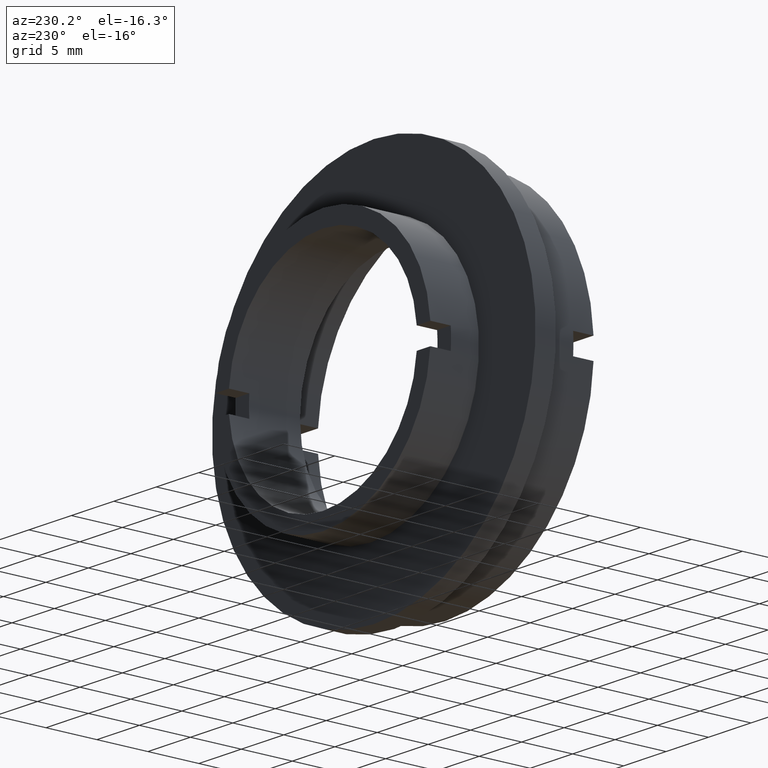
[diagram: clean part render]
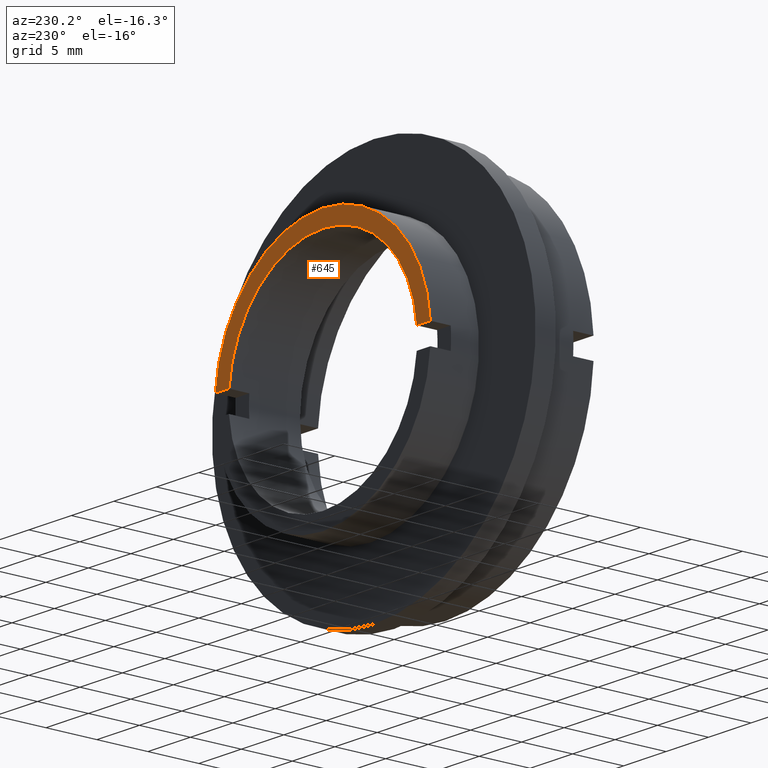
[diagram: same view with one face highlighted and labeled with its STEP entity id]
A machine part, auxiliary view. The second image highlights one B-rep face of the part: STEP entity #645.
In plain terms, the highlighted planar face has unit normal (-0, 1, 0).
Its self-contained STEP definition (entity closure, byte-faithful):
#47 = CIRCLE ( 'NONE', #869, 12.69999999999999800 ) ;
#64 = CARTESIAN_POINT ( 'NONE',  ( -11.09999999999999800, 12.00000000000000000, 0.0000000000000000000 ) ) ;
#74 = PLANE ( 'NONE',  #229 ) ;
#102 = DIRECTION ( 'NONE',  ( 1.000000000000000000, 0.0000000000000000000, 0.0000000000000000000 ) ) ;
#130 = CARTESIAN_POINT ( 'NONE',  ( -11.09999999999999800, 12.00000000000000000, 1.000000000000001600 ) ) ;
#174 = VERTEX_POINT ( 'NONE', #736 ) ;
#213 = FACE_OUTER_BOUND ( 'NONE', #1037, .T. ) ;
#229 = AXIS2_PLACEMENT_3D ( 'NONE', #64, #271, #268 ) ;
#268 = DIRECTION ( 'NONE',  ( 0.0000000000000000000, 0.0000000000000000000, 1.000000000000000000 ) ) ;
#271 = DIRECTION ( 'NONE',  ( -0.0000000000000000000, 1.000000000000000000, 0.0000000000000000000 ) ) ;
#285 = VERTEX_POINT ( 'NONE', #673 ) ;
#300 = AXIS2_PLACEMENT_3D ( 'NONE', #332, #632, #692 ) ;
#307 = CIRCLE ( 'NONE', #994, 11.09999999999999800 ) ;
#310 = LINE ( 'NONE', #130, #1276 ) ;
#315 = EDGE_CURVE ( 'NONE', #1070, #1232, #307, .T. ) ;
#332 = CARTESIAN_POINT ( 'NONE',  ( 0.0000000000000000000, 12.00000000000000000, 0.0000000000000000000 ) ) ;
#433 = EDGE_CURVE ( 'NONE', #817, #1070, #310, .T. ) ;
#476 = ORIENTED_EDGE ( 'NONE', *, *, #433, .F. ) ;
#486 = ORIENTED_EDGE ( 'NONE', *, *, #1149, .F. ) ;
#526 = DIRECTION ( 'NONE',  ( 1.000000000000000000, 0.0000000000000000000, 0.0000000000000000000 ) ) ;
#539 = CARTESIAN_POINT ( 'NONE',  ( -12.66056870760551300, 12.00000000000000000, 1.000000000000001600 ) ) ;
#540 = LINE ( 'NONE', #903, #1046 ) ;
#546 = DIRECTION ( 'NONE',  ( 0.0000000000000000000, 0.0000000000000000000, 1.000000000000000000 ) ) ;
#552 = EDGE_CURVE ( 'NONE', #285, #174, #47, .T. ) ;
#632 = DIRECTION ( 'NONE',  ( -0.0000000000000000000, 1.000000000000000000, -0.0000000000000000000 ) ) ;
#645 = ADVANCED_FACE ( 'NONE', ( #213 ), #74, .T. ) ;
#660 = EDGE_CURVE ( 'NONE', #1232, #1210, #835, .T. ) ;
#673 = CARTESIAN_POINT ( 'NONE',  ( 0.0000000000000000000, 12.00000000000000000, 12.69999999999999800 ) ) ;
#689 = CARTESIAN_POINT ( 'NONE',  ( -11.05486318323297800, 12.00000000000000000, 1.000000000000001600 ) ) ;
#692 = DIRECTION ( 'NONE',  ( 0.0000000000000000000, 0.0000000000000000000, 1.000000000000000000 ) ) ;
#714 = ORIENTED_EDGE ( 'NONE', *, *, #740, .T. ) ;
#727 = ORIENTED_EDGE ( 'NONE', *, *, #552, .T. ) ;
#730 = DIRECTION ( 'NONE',  ( -0.0000000000000000000, 1.000000000000000000, -0.0000000000000000000 ) ) ;
#736 = CARTESIAN_POINT ( 'NONE',  ( 12.66056870760551300, 12.00000000000000000, 1.000000000000001600 ) ) ;
#740 = EDGE_CURVE ( 'NONE', #817, #285, #866, .T. ) ;
#771 = CARTESIAN_POINT ( 'NONE',  ( 0.0000000000000000000, 12.00000000000000000, 0.0000000000000000000 ) ) ;
#789 = AXIS2_PLACEMENT_3D ( 'NONE', #1324, #1257, #546 ) ;
#817 = VERTEX_POINT ( 'NONE', #539 ) ;
#835 = CIRCLE ( 'NONE', #300, 11.09999999999999800 ) ;
#838 = DIRECTION ( 'NONE',  ( 0.0000000000000000000, 0.0000000000000000000, 1.000000000000000000 ) ) ;
#866 = CIRCLE ( 'NONE', #789, 12.69999999999999800 ) ;
#869 = AXIS2_PLACEMENT_3D ( 'NONE', #979, #1318, #1310 ) ;
#903 = CARTESIAN_POINT ( 'NONE',  ( -11.09999999999999800, 12.00000000000000000, 1.000000000000001600 ) ) ;
#916 = CARTESIAN_POINT ( 'NONE',  ( 0.0000000000000000000, 12.00000000000000000, 11.09999999999999800 ) ) ;
#979 = CARTESIAN_POINT ( 'NONE',  ( 0.0000000000000000000, 12.00000000000000000, 0.0000000000000000000 ) ) ;
#994 = AXIS2_PLACEMENT_3D ( 'NONE', #771, #730, #838 ) ;
#1005 = ORIENTED_EDGE ( 'NONE', *, *, #315, .F. ) ;
#1037 = EDGE_LOOP ( 'NONE', ( #476, #714, #727, #486, #1161, #1005 ) ) ;
#1046 = VECTOR ( 'NONE', #526, 1000.000000000000000 ) ;
#1070 = VERTEX_POINT ( 'NONE', #689 ) ;
#1149 = EDGE_CURVE ( 'NONE', #1210, #174, #540, .T. ) ;
#1159 = CARTESIAN_POINT ( 'NONE',  ( 11.05486318323297800, 12.00000000000000000, 1.000000000000001600 ) ) ;
#1161 = ORIENTED_EDGE ( 'NONE', *, *, #660, .F. ) ;
#1210 = VERTEX_POINT ( 'NONE', #1159 ) ;
#1232 = VERTEX_POINT ( 'NONE', #916 ) ;
#1257 = DIRECTION ( 'NONE',  ( -0.0000000000000000000, 1.000000000000000000, -0.0000000000000000000 ) ) ;
#1276 = VECTOR ( 'NONE', #102, 1000.000000000000000 ) ;
#1310 = DIRECTION ( 'NONE',  ( 0.0000000000000000000, 0.0000000000000000000, 1.000000000000000000 ) ) ;
#1318 = DIRECTION ( 'NONE',  ( -0.0000000000000000000, 1.000000000000000000, -0.0000000000000000000 ) ) ;
#1324 = CARTESIAN_POINT ( 'NONE',  ( 0.0000000000000000000, 12.00000000000000000, 0.0000000000000000000 ) ) ;